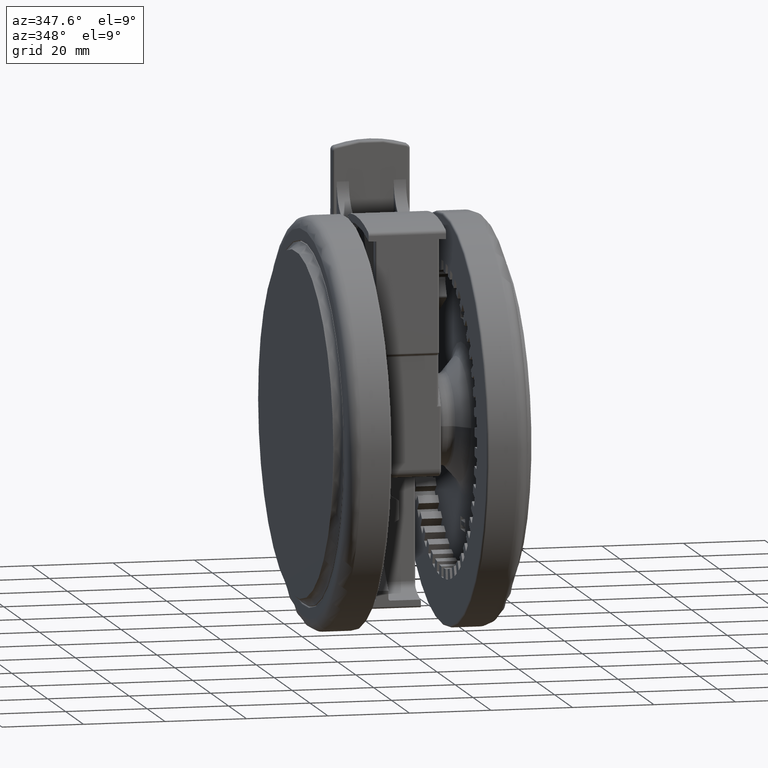
[diagram: clean part render]
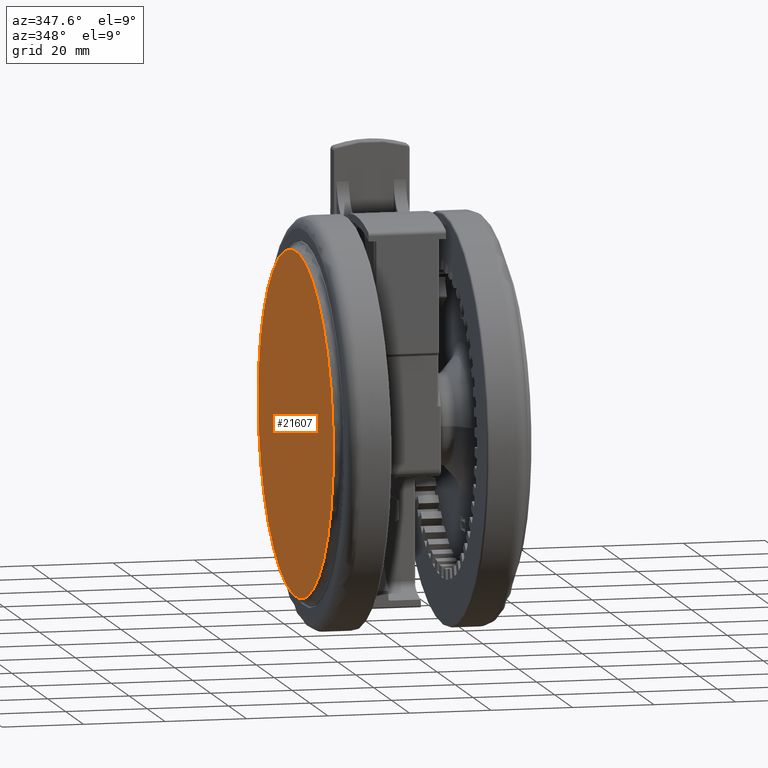
[diagram: same view with one face highlighted and labeled with its STEP entity id]
A machine part, auxiliary view. The second image highlights one B-rep face of the part: STEP entity #21607.
In plain terms, the highlighted planar face has unit normal (1, -0, 0).
Its self-contained STEP definition (entity closure, byte-faithful):
#1941 = PLANE ( 'NONE',  #26433 ) ;
#2290 = CARTESIAN_POINT ( 'NONE',  ( 0.0000000000000000000, -7.806255641895631900E-015, -48.59999999999984500 ) ) ;
#4415 = DIRECTION ( 'NONE',  ( -3.380642383533773200E-017, -2.202247500052102700E-016, -1.000000000000000000 ) ) ;
#5727 = DIRECTION ( 'NONE',  ( 6.405764716563957100E-017, 2.112576789350188500E-016, 1.000000000000000000 ) ) ;
#6096 = DIRECTION ( 'NONE',  ( 0.9587657712597810200, -0.2841974592789974800, 0.0000000000000000000 ) ) ;
#7733 = CARTESIAN_POINT ( 'NONE',  ( -40.26816239291080300, 11.93629328971787900, -48.59999999999984500 ) ) ;
#7886 = FACE_OUTER_BOUND ( 'NONE', #22206, .T. ) ;
#14557 = VERTEX_POINT ( 'NONE', #23905 ) ;
#18046 = EDGE_CURVE ( 'NONE', #14557, #40444, #36016, .T. ) ;
#21607 = ADVANCED_FACE ( 'NONE', ( #7886 ), #1941, .F. ) ;
#22206 = EDGE_LOOP ( 'NONE', ( #42860, #27906 ) ) ;
#23905 = CARTESIAN_POINT ( 'NONE',  ( 40.26816239291080300, -11.93629328971789700, -48.59999999999984500 ) ) ;
#25271 = CIRCLE ( 'NONE', #43969, 42.00000000000000000 ) ;
#26433 = AXIS2_PLACEMENT_3D ( 'NONE', #43343, #5727, #32154 ) ;
#27069 = CARTESIAN_POINT ( 'NONE',  ( 0.0000000000000000000, -7.806255641895631900E-015, -48.59999999999984500 ) ) ;
#27906 = ORIENTED_EDGE ( 'NONE', *, *, #33268, .T. ) ;
#28726 = DIRECTION ( 'NONE',  ( -3.380642383533773200E-017, -2.202247500052102700E-016, -1.000000000000000000 ) ) ;
#30854 = DIRECTION ( 'NONE',  ( 0.9587657712597810200, -0.2841974592789974800, 0.0000000000000000000 ) ) ;
#32154 = DIRECTION ( 'NONE',  ( -0.9587657712597810200, 0.2841974592789973700, 1.377383883340829000E-018 ) ) ;
#33268 = EDGE_CURVE ( 'NONE', #40444, #14557, #25271, .T. ) ;
#36016 = CIRCLE ( 'NONE', #45789, 42.00000000000000000 ) ;
#40444 = VERTEX_POINT ( 'NONE', #7733 ) ;
#42860 = ORIENTED_EDGE ( 'NONE', *, *, #18046, .T. ) ;
#43343 = CARTESIAN_POINT ( 'NONE',  ( 0.0000000000000000000, -7.806255641895631900E-015, -48.59999999999984500 ) ) ;
#43969 = AXIS2_PLACEMENT_3D ( 'NONE', #2290, #28726, #6096 ) ;
#45789 = AXIS2_PLACEMENT_3D ( 'NONE', #27069, #4415, #30854 ) ;